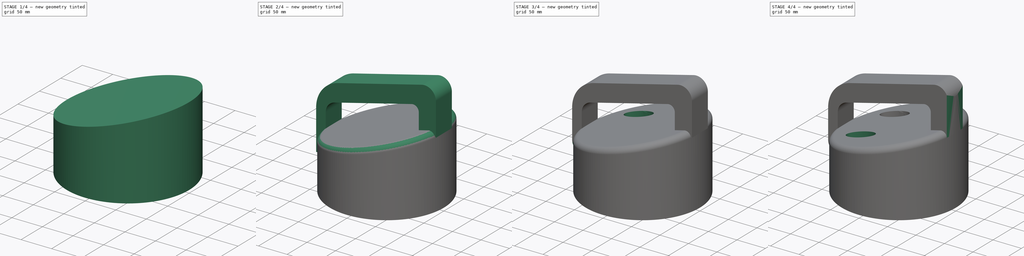
[diagram: build sequence overview — one tinted view per stage of 4, left to right]
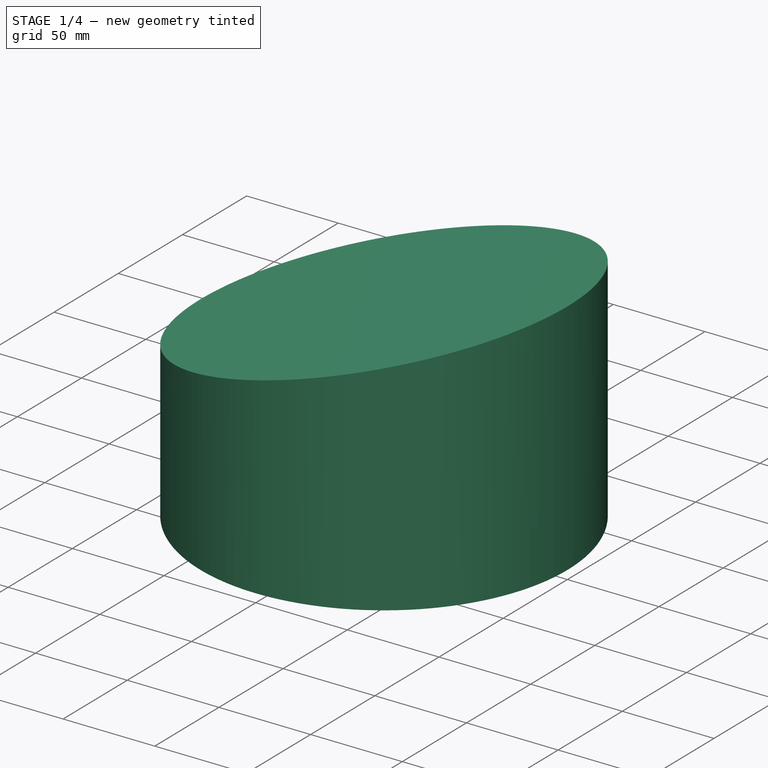
[diagram: stage 1 of 4 — iso view after this stage's code; geometry added in this stage tinted green]
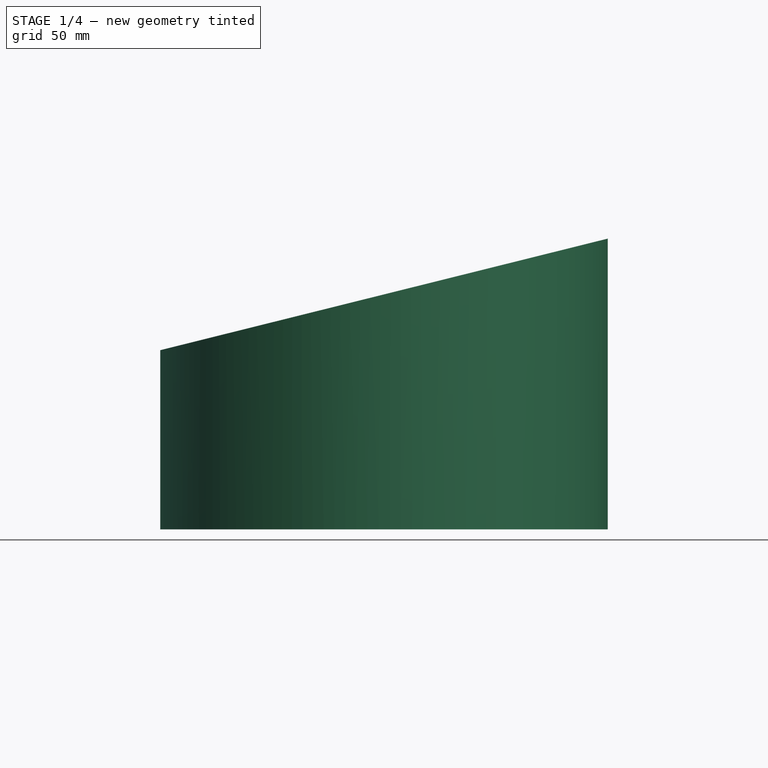
[diagram: stage 1 of 4 — front view after this stage's code; geometry added in this stage tinted green]
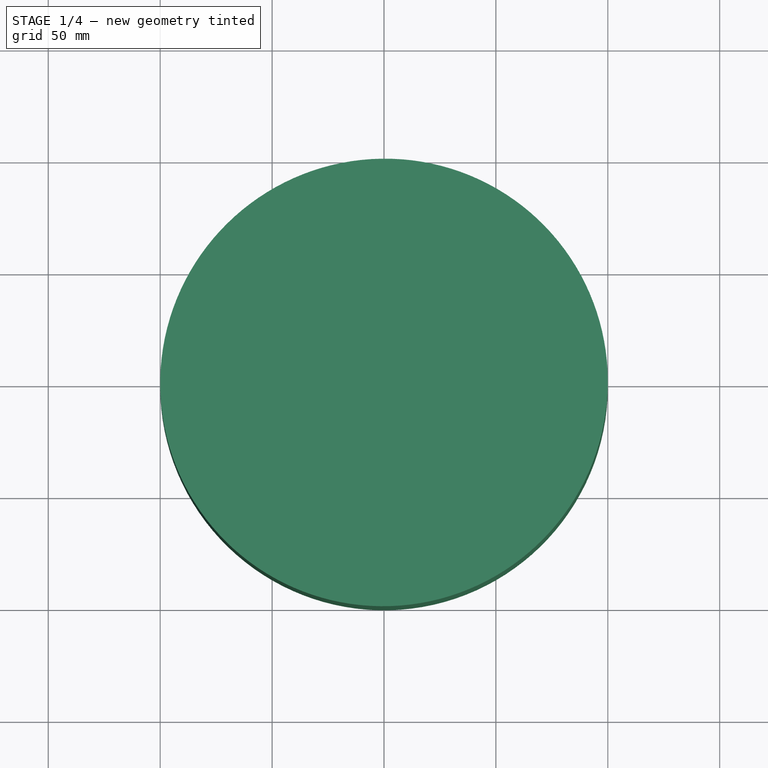
[diagram: stage 1 of 4 — top view after this stage's code; geometry added in this stage tinted green]
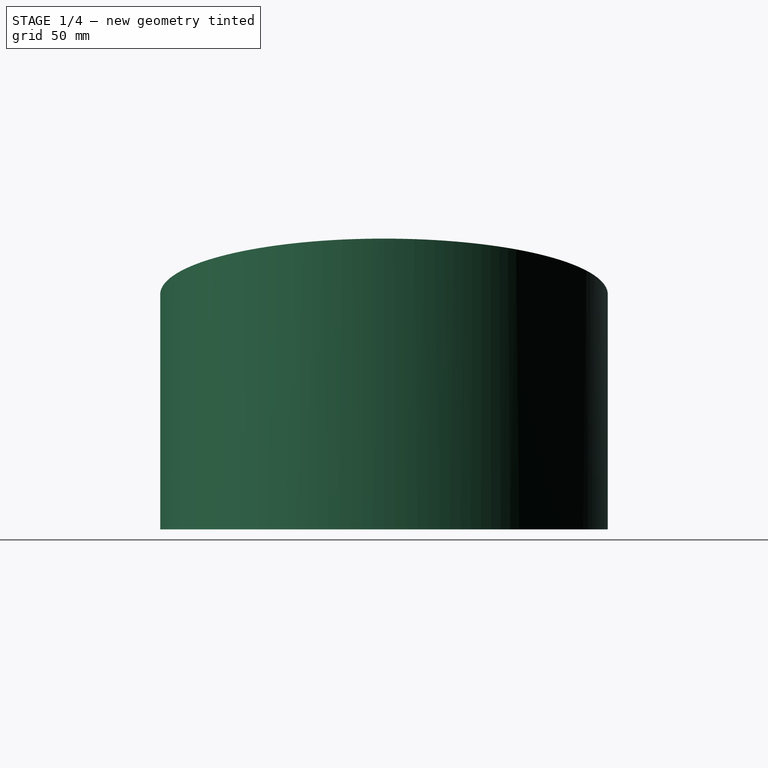
[diagram: stage 1 of 4 — right view after this stage's code; geometry added in this stage tinted green]
FCSTD DOCUMENT  (FreeCAD 1.1R42180 (Git))
Label: 23-T-80_Dust_Lid
License: Creative Commons Attribution-NonCommercial-ShareAlike 4.0
LicenseURL: https://creativecommons.org/licenses/by-nc-sa/4.0/
objects: Sketcher::SketchObject×6, Part::DatumPlane×4, PartDesign::Pocket×4, PartDesign::Pad×3, App::Point×1, PartDesign::Fillet×1, PartDesign::Mirrored×1, PartDesign::Body×1
note: 39 computed .brp shape members not serialized (recipe doc carries the construction recipe); baked Part::Feature solids carry a one-line shape summary decoded from their .brp

FEATURE [App::Point] Origin001  label="Origine"
  Role = Origin
FEATURE [Sketcher::SketchObject] Sketch
  ArcFitTolerance = 1e-06
  AttachmentSupport = -> [Origin]
  ExternalTypes = [0]
  FullyConstrained = true
  MakeInternals = false
  MapMode = 5
  Placement = pos=(0,0,0) rot=(1,0,0;1.5708rad)
  sketch-geometry (7):
    g0: GeomPoint X=0 Y=105 Z=0
    g1: LineSegment StartX=-85 StartY=70 StartZ=0 EndX=85 EndY=90 EndZ=0
    g2: LineSegment [constr] StartX=-85 StartY=70 StartZ=0 EndX=0 EndY=70 EndZ=0
    g3: LineSegment [constr] StartX=0 StartY=90 StartZ=0 EndX=85 EndY=90 EndZ=0
    g4: LineSegment StartX=-85 StartY=83.8071 StartZ=0 EndX=85 EndY=126.193 EndZ=0
    g5: LineSegment StartX=-85 StartY=125.032 StartZ=0 EndX=85 EndY=167.417 EndZ=0
    g6: LineSegment StartX=-85 StartY=155.95 StartZ=0 EndX=85 EndY=198.336 EndZ=0
  constraints (25):
    c: PointOnObject(g0,g-2)
    c: DistanceY(g-1,g0) = 105
    c: DistanceX(g1,g1) = 170
    c: Coincident(g2,g1)
    c: Horizontal(g2)
    c: PointOnObject(g3,g-2)
    c: Coincident(g3,g1)
    c: Horizontal(g3)
    c: Equal(g2,g3)
    c: Distance(g1,g-1) = 70
    c: Distance(g1,g-1) = 90
    c: Angle(g-1,g4) = 0.244346
    c: Angle(g1,g4) = 0.127237
    c: Vertical(g1,g4)
    c: Vertical(g1,g4)
    c: PointOnObject(g2,g-2)
    c: PointOnObject(g0,g4)
    c: Parallel(g4,g5)
    c: Parallel(g5,g6)
    c: Vertical(g4,g5)
    c: Vertical(g5,g6)
    c: Vertical(g4,g5)
    c: Vertical(g5,g6)
    c: Distance(g5,g6) = 30
    c: Distance(g4,g5) = 40
FEATURE [Part::DatumPlane] DatumPlane
  AttachmentSupport = -> [Sketch,Origin]
  MapMode = 14
  Placement = pos=(-9.28328,1.75e-14,78.9078) rot=(0.058421,-0.058421,-0.996581;1.57422rad)
FEATURE [Part::DatumPlane] DatumPlane001
  AttachmentSupport = -> [Sketch,Origin]
  MapMode = 14
  Placement = pos=(-24.6473,2.2e-14,98.8547) rot=(0.120974,-0.120974,-0.985257;1.58565rad)
FEATURE [Part::DatumPlane] DatumPlane002
  AttachmentSupport = -> [Sketch]
  MapMode = 14
  Placement = pos=(-77.7423,2.82e-14,126.841) rot=(0.704457,0.704457,0.086496;2.96903rad)
FEATURE [Part::DatumPlane] DatumPlane003
  AttachmentSupport = -> [Sketch,Origin]
  MapMode = 14
  Placement = pos=(-41.5818,3.7e-14,166.775) rot=(0.120974,-0.120974,-0.985257;1.58565rad)
FEATURE [Sketcher::SketchObject] Sketch001
  ArcFitTolerance = 1e-06
  AttachmentSupport = -> [Origin]
  ExternalTypes = [0]
  FullyConstrained = true
  MakeInternals = false
  MapMode = 5
  sketch-geometry (1):
    g0: Circle CenterX=0 CenterY=0 CenterZ=0 NormalX=0 NormalY=0 NormalZ=1 AngleXU=0 Radius=100
  constraints (2):
    c: Coincident(g0,g-1)
    c: Diameter(g0) = 200
FEATURE [PartDesign::Pad] Pad
  Direction = (0,0,1)
  Length = 10
  Length2 = 10
  Profile = -> Sketch001
  ReferenceAxis = -> Sketch001 [N_Axis]
  Refine = true
  Suppressed = false
  Type = 3
  UpToFace = -> DatumPlane001
FEATURE [Sketcher::SketchObject] Sketch002
  ArcFitTolerance = 1e-06
  AttachmentSupport = -> [Origin]
  ExternalTypes = [0]
  FullyConstrained = true
  MakeInternals = false
  MapMode = 5
  sketch-geometry (1):
    g0: Circle CenterX=0 CenterY=0 CenterZ=0 NormalX=0 NormalY=0 NormalZ=1 AngleXU=0 Radius=85
  constraints (2):
    c: Diameter(g0) = 170
    c: Coincident(g0,g-1)
FEATURE [PartDesign::Pocket] Pocket
  BaseFeature = -> Pad
  Direction = (0,0,-1)
  Length = 0
  Length2 = 5
  Profile = -> Sketch002
  ReferenceAxis = -> Sketch002 [N_Axis]
  Refine = true
  Suppressed = false
  Type = 3
  UpToFace = -> DatumPlane
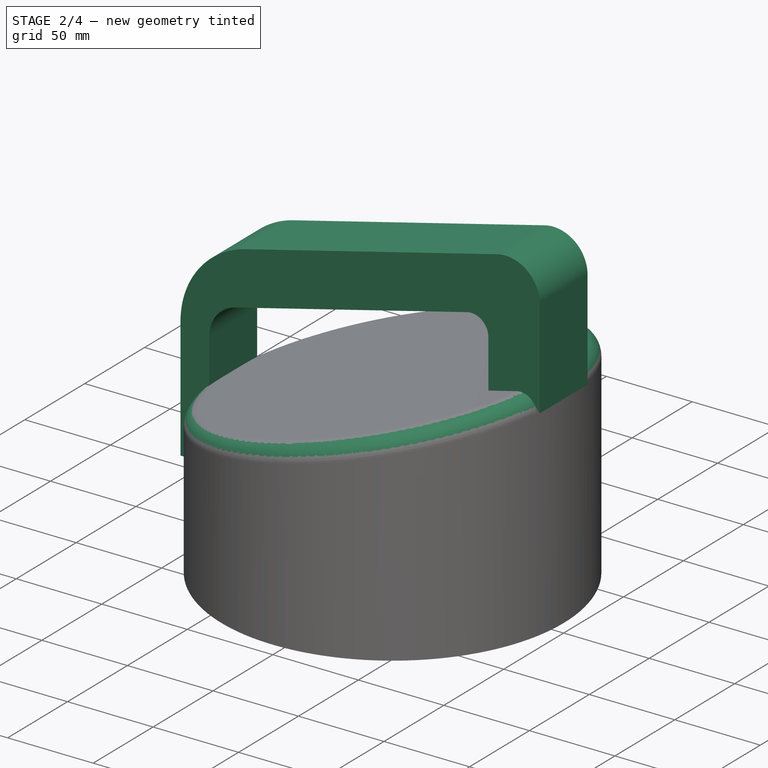
[diagram: stage 2 of 4 — iso view after this stage's code; geometry added in this stage tinted green]
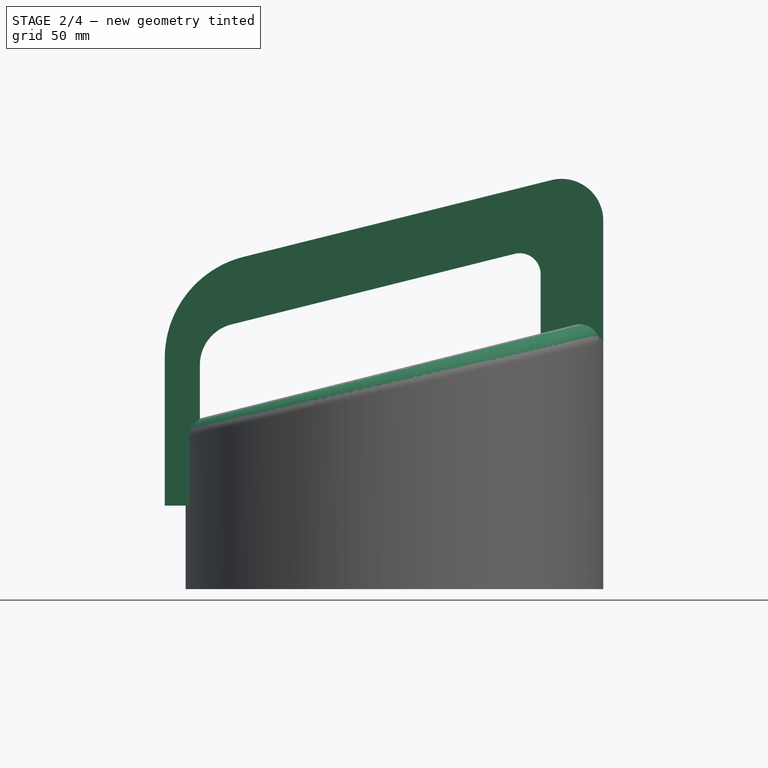
[diagram: stage 2 of 4 — front view after this stage's code; geometry added in this stage tinted green]
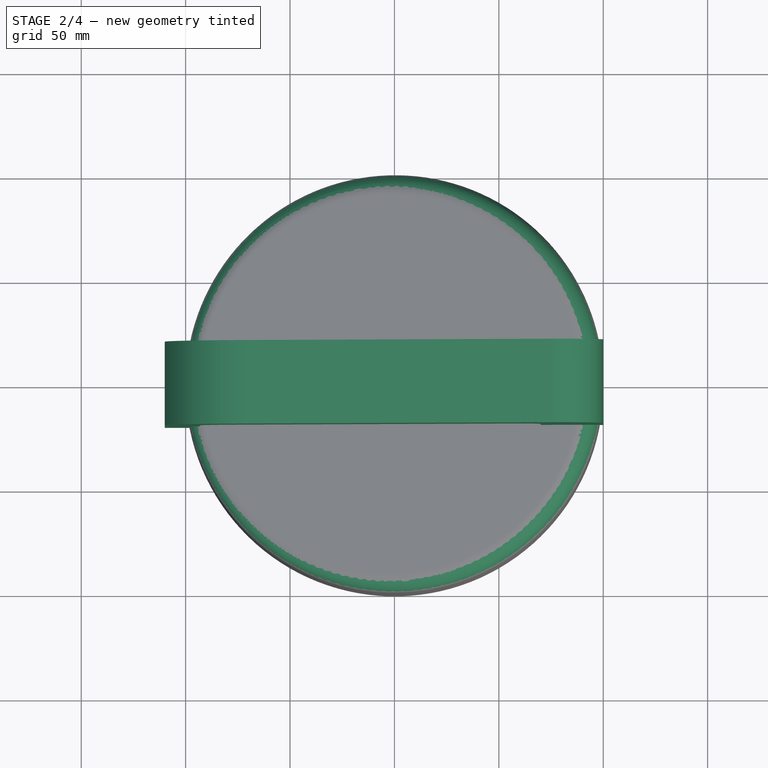
[diagram: stage 2 of 4 — top view after this stage's code; geometry added in this stage tinted green]
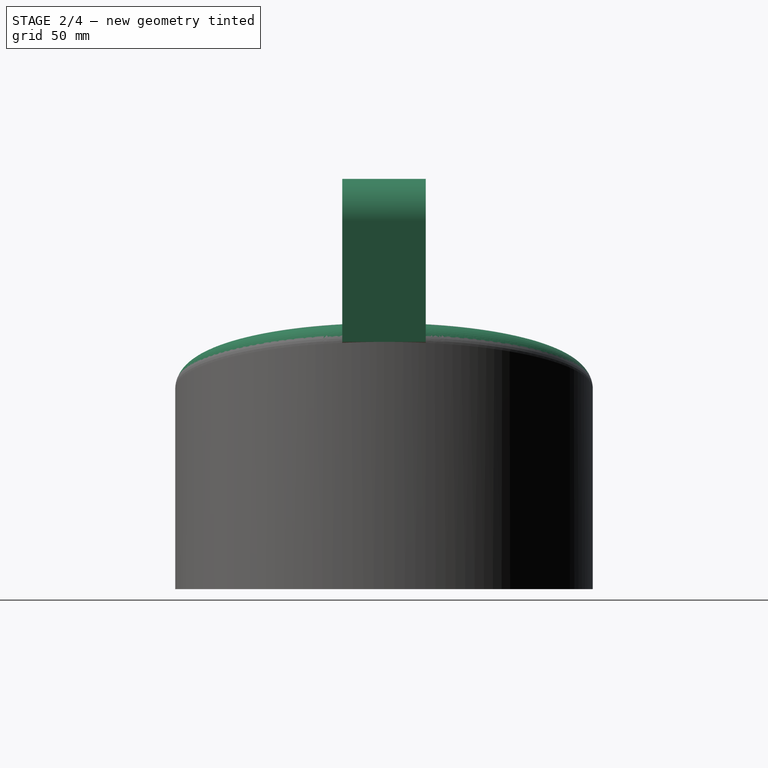
[diagram: stage 2 of 4 — right view after this stage's code; geometry added in this stage tinted green]
FEATURE [PartDesign::Fillet] Fillet
  Base = -> Pocket [Edge3]
  BaseFeature = -> Pocket
  Radius = 9
  Refine = true
  SupportTransform = false
  Suppressed = false
  UseAllEdges = false
FEATURE [Sketcher::SketchObject] Sketch004
  ArcFitTolerance = 1e-06
  AttachmentSupport = -> [Origin]
  ExternalGeometry = -> [Sketch,Fillet]
  ExternalTypes = [0,0,0,0,0,0]
  FullyConstrained = true
  MakeInternals = false
  MapMode = 5
  Placement = pos=(0,0,0) rot=(1,0,0;1.5708rad)
  sketch-geometry (12):
    g0: LineSegment StartX=100 StartY=118.413 StartZ=0 EndX=100 EndY=176.477 EndZ=0
    g1: ArcOfCircle CenterX=80 CenterY=176.477 CenterZ=0 NormalX=0 NormalY=0 NormalZ=1 AngleXU=0 Radius=20 StartAngle=4e-16 EndAngle=1.81514
    g2: LineSegment StartX=75.1616 StartY=195.883 StartZ=0 EndX=-72.0961 EndY=159.167 EndZ=0
    g3: LineSegment StartX=-93.1773 StartY=107.367 StartZ=0 EndX=-93.1773 EndY=40 EndZ=0
    g4: LineSegment StartX=-93.1773 StartY=40 StartZ=0 EndX=-110 EndY=40 EndZ=0
    g5: LineSegment StartX=-110 StartY=40 StartZ=0 EndX=-110 EndY=110.653 EndZ=0
    g6: ArcOfCircle CenterX=60 CenterY=150.878 CenterZ=0 NormalX=0 NormalY=0 NormalZ=1 AngleXU=0 Radius=10 StartAngle=3e-16 EndAngle=1.81514
    g7: LineSegment StartX=70 StartY=150.878 StartZ=0 EndX=70 EndY=111.606 EndZ=0
    g8: LineSegment StartX=70 StartY=111.606 StartZ=0 EndX=100 EndY=118.413 EndZ=0
    g9: ArcOfCircle CenterX=-60 CenterY=110.653 CenterZ=0 NormalX=0 NormalY=0 NormalZ=1 AngleXU=0 Radius=50 StartAngle=1.81514 EndAngle=3.14159
    g10: LineSegment StartX=57.5808 StartY=160.581 StartZ=0 EndX=-78.0157 EndY=126.773 EndZ=0
    g11: ArcOfCircle CenterX=-73.1773 CenterY=107.367 CenterZ=0 NormalX=0 NormalY=0 NormalZ=1 AngleXU=0 Radius=20 StartAngle=1.81514 EndAngle=3.14159
  constraints (31):
    c: Vertical(g0)
    c: Tangent(g0,g1) = -1.5708
    c: PointOnObject(g1,g-5)
    c: PointOnObject(g2,g-5)
    c: Coincident(g3,g4)
    c: Horizontal(g4)
    c: Coincident(g4,g5)
    c: Vertical(g7)
    c: Vertical(g3)
    c: Tangent(g1,g2) = -1.5708
    c: Tangent(g6,g7) = 1.5708
    c: Radius(g6) = 10
    c: Radius(g1) = 20
    c: Vertical(g5)
    c: Radius(g9) = 50
    c: Tangent(g9,g5) = 1.5708
    c: Tangent(g2,g9) = -1.5708
    c: Coincident(g8,g7)
    c: Distance(g6,g0) = 30
    c: Distance(g3,g-1) = 40
    c: PointOnObject(g10,g-4)
    c: Tangent(g11,g10) = -1.5708
    c: Tangent(g11,g3) = -1.5708
    c: Radius(g11) = 20
    c: Tangent(g10,g6) = -1.5708
    c: PointOnObject(g6,g-4)
    c: Coincident(g0,g-9)
    c: Coincident(g8,g0)
    c: PointOnObject(g7,g-9)
    c: PointOnObject(g-11,g3)
    c: Distance(g-11,g5) = 10
FEATURE [PartDesign::Pad] Pad001
  BaseFeature = -> Fillet
  Direction = (0,-1,2e-16)
  Length = 40
  Length2 = 10
  Midplane = true
  Profile = -> Sketch004
  ReferenceAxis = -> Sketch004 [N_Axis]
  Refine = true
  Suppressed = false
  Type = 0
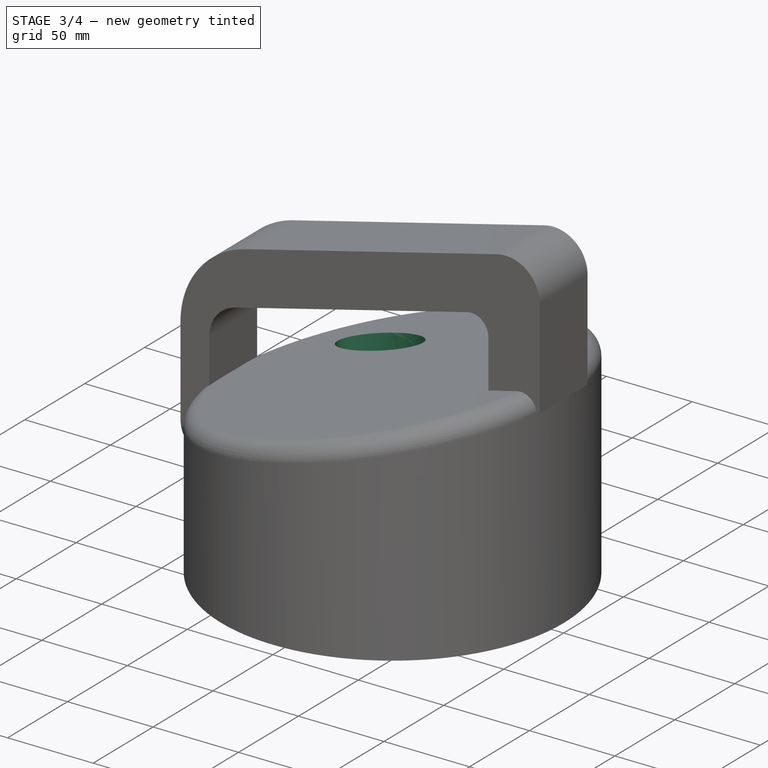
[diagram: stage 3 of 4 — iso view after this stage's code; geometry added in this stage tinted green]
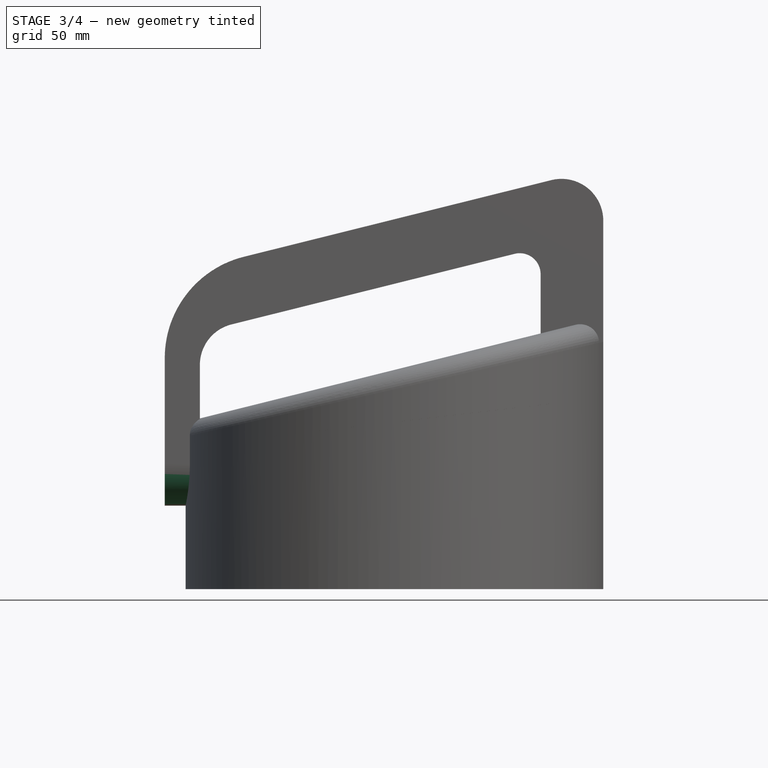
[diagram: stage 3 of 4 — front view after this stage's code; geometry added in this stage tinted green]
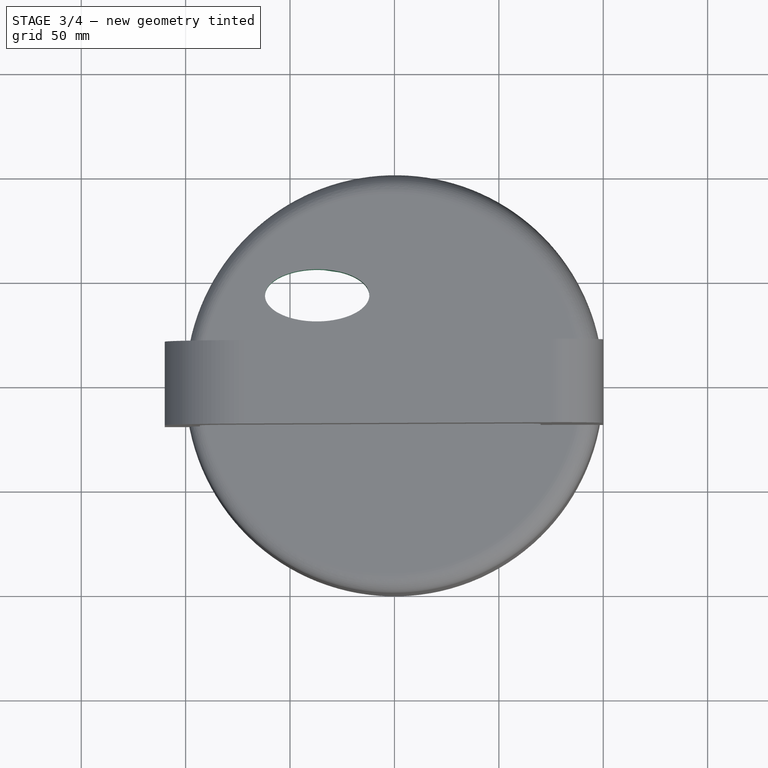
[diagram: stage 3 of 4 — top view after this stage's code; geometry added in this stage tinted green]
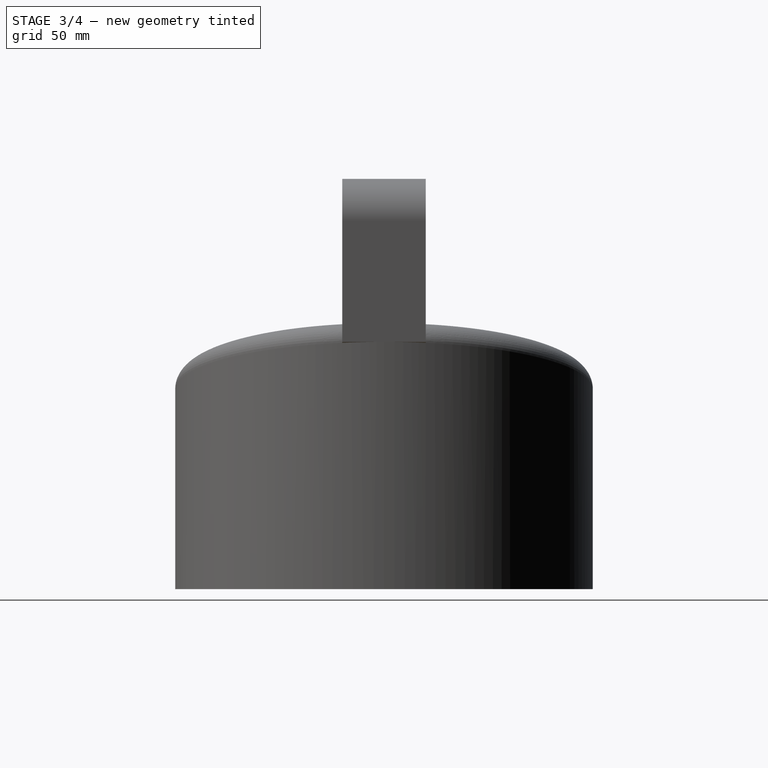
[diagram: stage 3 of 4 — right view after this stage's code; geometry added in this stage tinted green]
FEATURE [Sketcher::SketchObject] Sketch006
  ArcFitTolerance = 1e-06
  ExternalTypes = [0]
  FullyConstrained = true
  MakeInternals = false
  MapMode = 5
  Placement = pos=(-110,0,0) rot=(0.57735,-0.57735,-0.57735;2.0944rad)
  sketch-geometry (4):
    g0: ArcOfCircle CenterX=0 CenterY=60 CenterZ=0 NormalX=0 NormalY=0 NormalZ=1 AngleXU=0 Radius=20 StartAngle=3.14159 EndAngle=6.28319
    g1: LineSegment StartX=20 StartY=60.0001 StartZ=0 EndX=20 EndY=40 EndZ=0
    g2: LineSegment StartX=20 StartY=40 StartZ=0 EndX=-20 EndY=40 EndZ=0
    g3: LineSegment StartX=-20 StartY=40 StartZ=0 EndX=-20 EndY=60 EndZ=0
  constraints (11):
    c: Vertical(g1)
    c: Coincident(g1,g2)
    c: Horizontal(g2)
    c: Coincident(g2,g3)
    c: Vertical(g3)
    c: Vertical(g-3,g0)
    c: Tangent(g-3,g0)
    c: PointOnObject(g0,g-2)
    c: Coincident(g0,g1)
    c: Tangent(g3,g0) = 1.5708
    c: Coincident(g1,g-3)
FEATURE [PartDesign::Pocket] Pocket002
  BaseFeature = -> Pad001
  Direction = (1,0,0)
  Length = 13
  Length2 = 5
  Profile = -> Sketch006
  ReferenceAxis = -> Sketch006 [N_Axis]
  Refine = true
  Suppressed = false
  Type = 0
FEATURE [PartDesign::Pad] Pad002  label="because bug on pocket002 to surface"
  BaseFeature = -> Pocket002
  Direction = (0,0,1)
  Length = 10
  Length2 = 10
  Profile = -> Pocket002 [Face26]
  Refine = true
  Suppressed = false
  Type = 2
FEATURE [Sketcher::SketchObject] Sketch007
  ArcFitTolerance = 1e-06
  AttachmentSupport = -> [Origin]
  ExternalTypes = [0]
  FullyConstrained = true
  MakeInternals = false
  MapMode = 5
  expr: Constraints[7] = 85 / 2
  sketch-geometry (5):
    g0: Ellipse CenterX=-37 CenterY=42.5 CenterZ=0 NormalX=0 NormalY=0 NormalZ=1 MajorRadius=25 MinorRadius=12.5 AngleXU=0
    g1: LineSegment [constr] StartX=-12 StartY=42.5 StartZ=0 EndX=-62 EndY=42.5 EndZ=0
    g2: LineSegment [constr] StartX=-37 StartY=55 StartZ=0 EndX=-37 EndY=30 EndZ=0
    g3: GeomPoint [constr] X=-15.3494 Y=42.5 Z=0
    g4: GeomPoint [constr] X=-58.6506 Y=42.5 Z=0
  constraints (6):
    c: InternalAlignment(g1-g4 -> g0) x4
    c: DistanceY(g2,g2) = 25
    c: DistanceX(g1,g1) = 50
    c: Distance(g1,g-2) = 12
    c: Distance(g0,g-1) = 42.5
    c: Horizontal(g1)
FEATURE [PartDesign::Pocket] Pocket003
  BaseFeature = -> Pad002
  Direction = (0,0,-1)
  Length = 5
  Length2 = 5
  Midplane = true
  Profile = -> Sketch007
  ReferenceAxis = -> Sketch007 [N_Axis]
  Refine = true
  Suppressed = false
  Type = 1
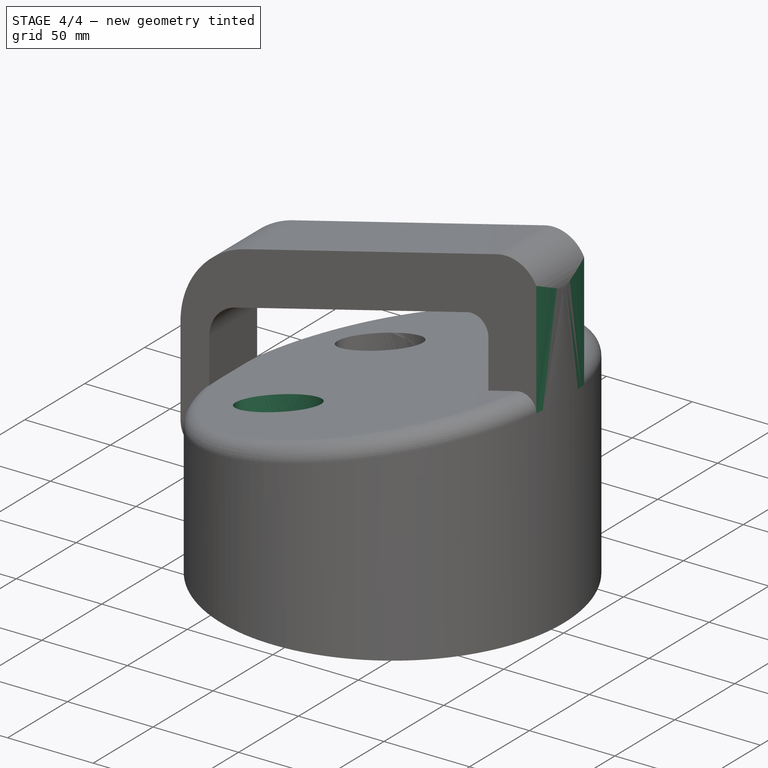
[diagram: stage 4 of 4 — iso view after this stage's code; geometry added in this stage tinted green]
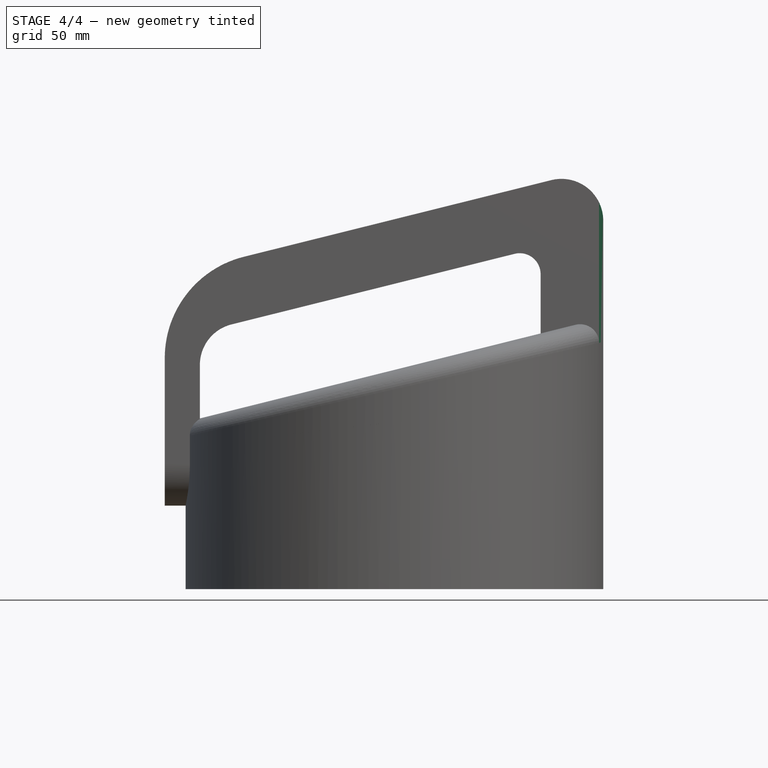
[diagram: stage 4 of 4 — front view after this stage's code; geometry added in this stage tinted green]
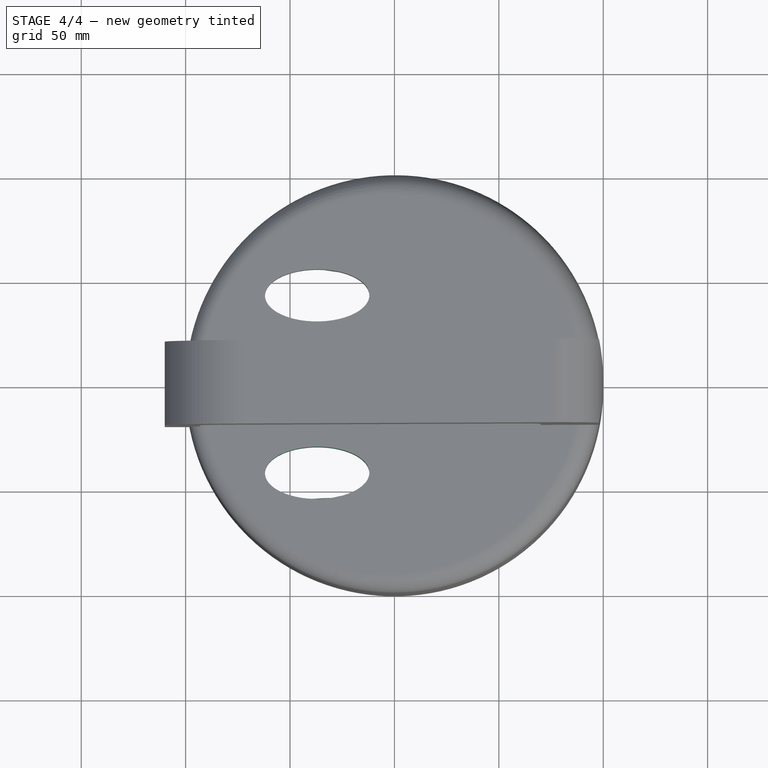
[diagram: stage 4 of 4 — top view after this stage's code; geometry added in this stage tinted green]
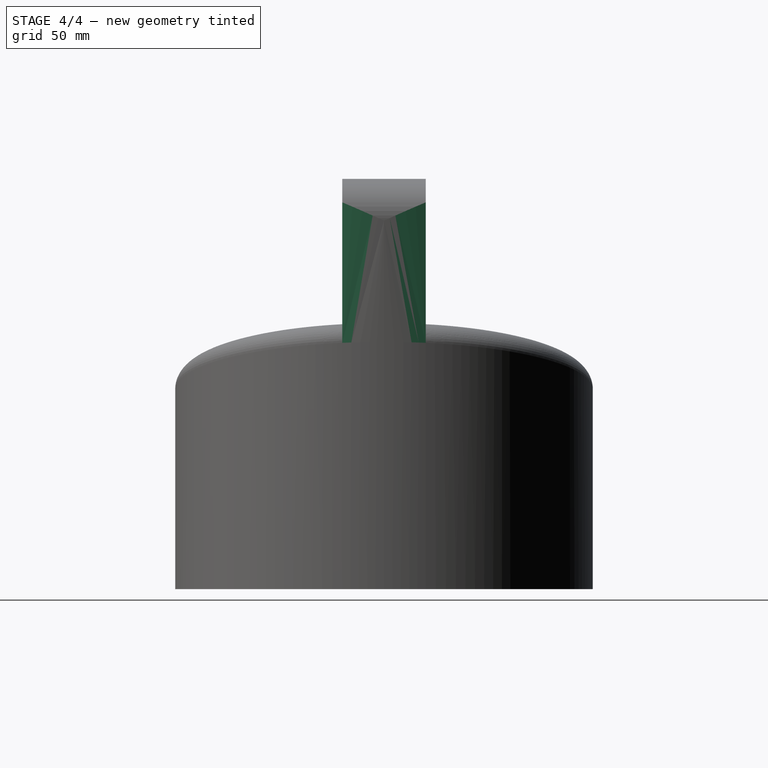
[diagram: stage 4 of 4 — right view after this stage's code; geometry added in this stage tinted green]
FEATURE [PartDesign::Mirrored] Mirrored
  BaseFeature = -> Pocket003
  MirrorPlane = -> XZ_Plane
  Originals = -> [Pocket003]
  Refine = true
  Suppressed = false
  TransformMode = 0
FEATURE [PartDesign::Pocket] Pocket004
  BaseFeature = -> Mirrored
  Direction = (-0.22,0,0.98)
  Length = 5
  Length2 = 5
  Midplane = true
  Profile = -> Pad001 [Face9,Face3]
  ReferenceAxis = -> Z_Axis
  Refine = true
  Suppressed = false
  Type = 1
FEATURE [PartDesign::Body] Body  label="Corps"
  AllowCompound = true
  Group = -> [Sketch,DatumPlane,DatumPlane001,DatumPlane002,DatumPlane003,Sketch001,Pad,Sketch002,Pocket,Fillet,Sketch004,Pad001,Sketch006,Pocket002,Pad002,Sketch007,Pocket003,Mirrored,Pocket004]
  Origin = -> Origin
  Tip = -> Pocket004
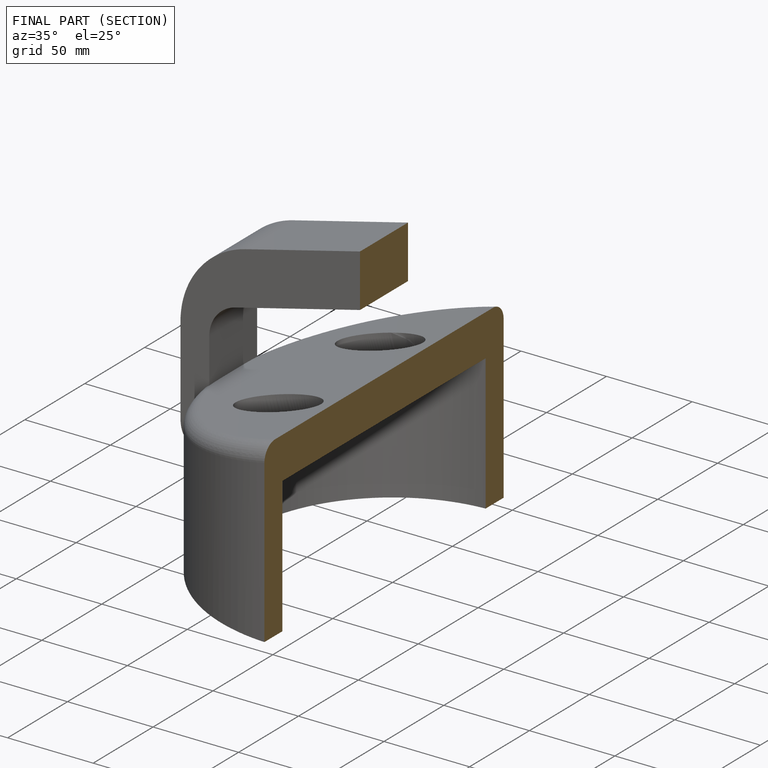
[diagram: finished part — half-section view (interior)]
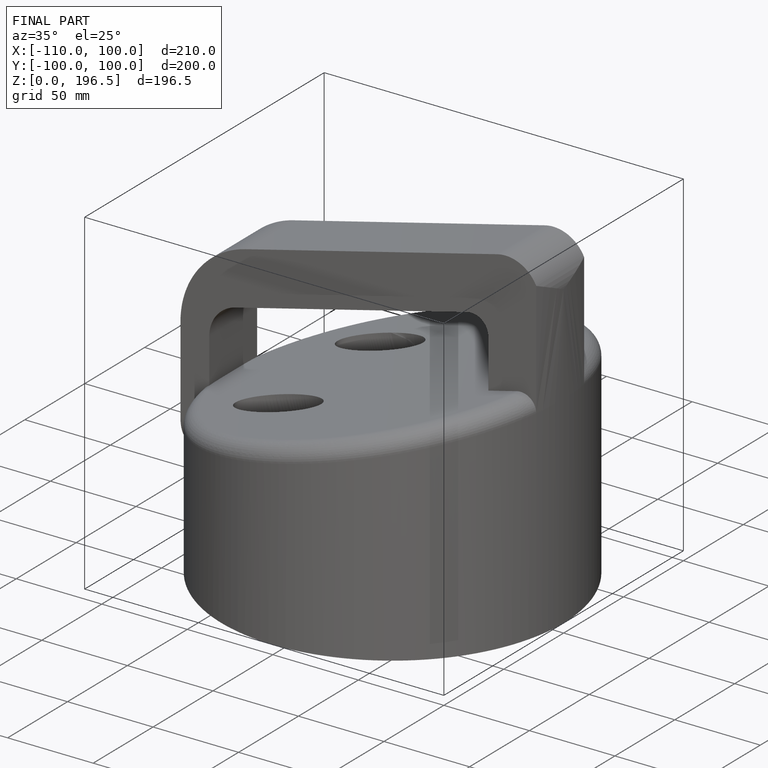
[diagram: finished part — iso view with bounding-box wireframe]
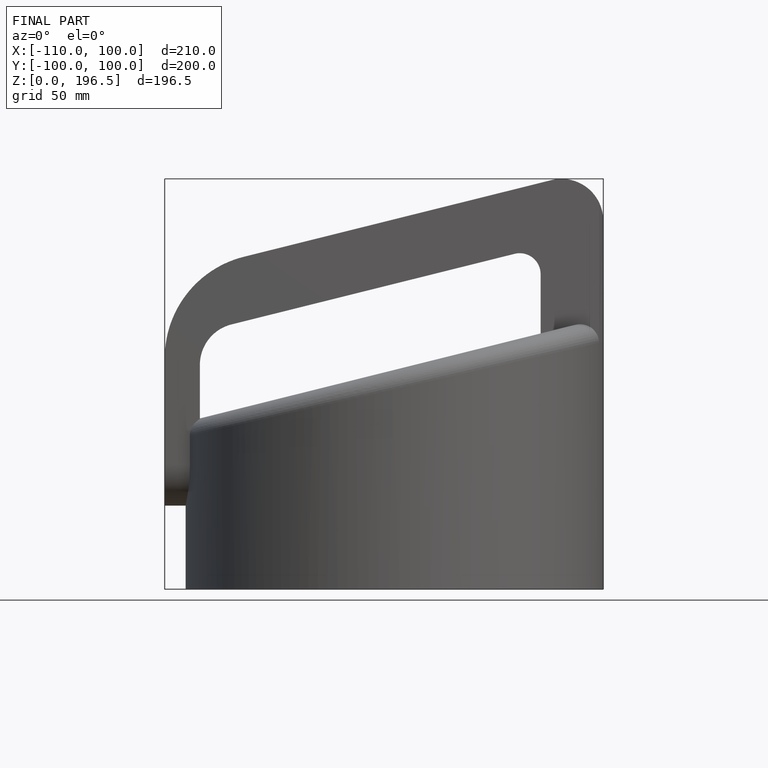
[diagram: finished part — front view with bounding-box wireframe]
